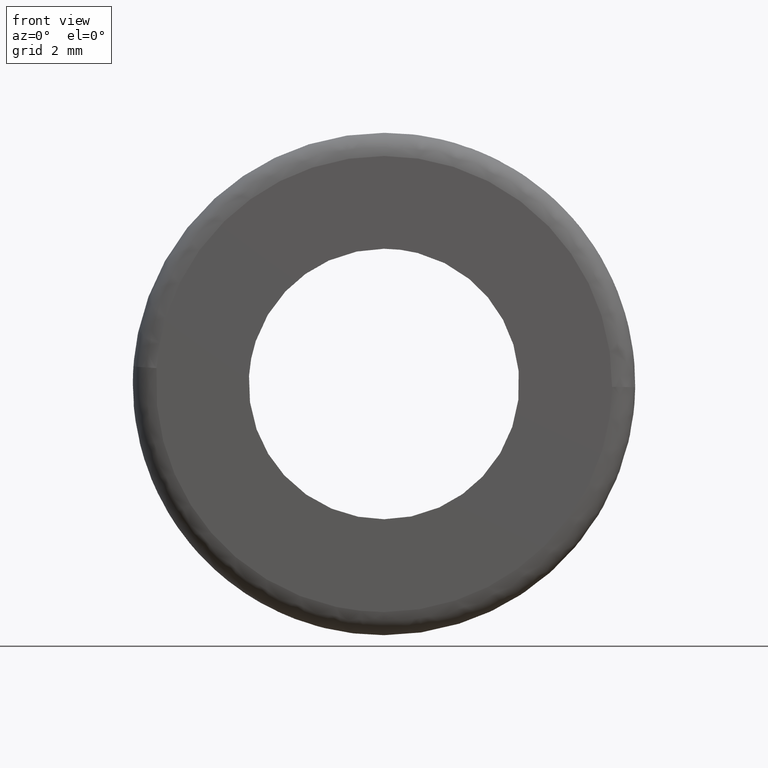
[diagram: clean part render]
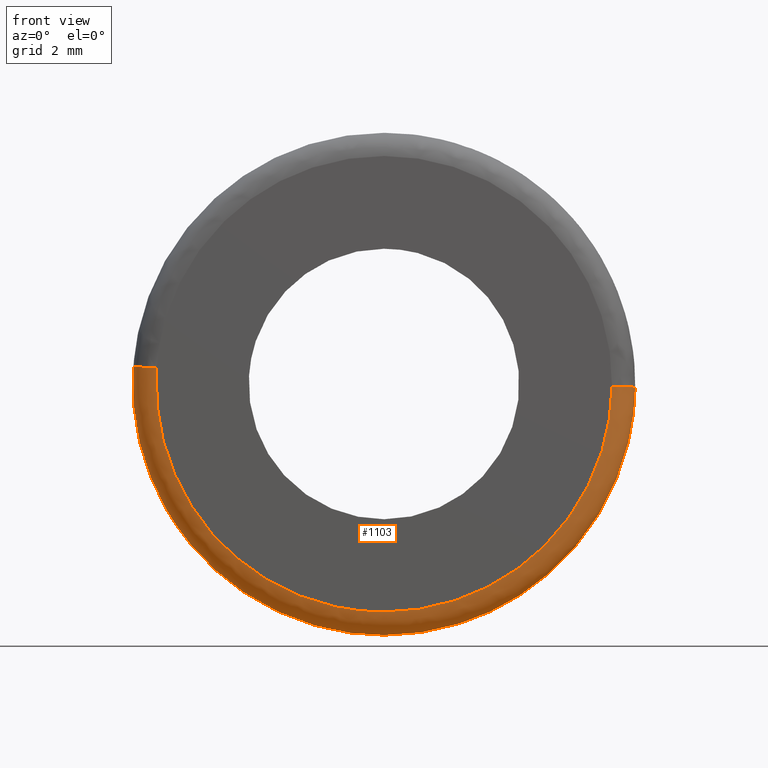
[diagram: same view with one face highlighted and labeled with its STEP entity id]
A machine part, front view. The second image highlights one B-rep face of the part: STEP entity #1103.
In plain terms, the highlighted face is a freeform B-spline surface patch.
Its self-contained STEP definition (entity closure, byte-faithful):
#70=CARTESIAN_POINT('',(3.527737390288090,0.599999999992864,-5.459401881631385));
#71=VERTEX_POINT('',#70);
#72=CARTESIAN_POINT('',(6.499486787324761,0.599999999956108,-0.081679259245201));
#73=VERTEX_POINT('',#72);
#74=CARTESIAN_POINT('',(3.527737390288090,0.599999999992864,-5.459401881631385));
#75=CARTESIAN_POINT('',(6.455681202378268,0.599999999979934,-3.567433454250579));
#76=CARTESIAN_POINT('',(6.499486787324761,0.599999999956108,-0.081679259245201));
#84=(BOUNDED_CURVE()B_SPLINE_CURVE(2,(#74,#75,#76),.UNSPECIFIED.,.F.,.U.)B_SPLINE_CURVE_WITH_KNOTS((3,3),(0.092934731225705,0.247784295921544),.UNSPECIFIED.)CURVE()GEOMETRIC_REPRESENTATION_ITEM()RATIONAL_B_SPLINE_CURVE((0.863190106682966,0.816652486740027,0.994854295643588))REPRESENTATION_ITEM(''));
#85=EDGE_CURVE('',#71,#73,#84,.T.);
#128=CARTESIAN_POINT('',(-5.015560096692222,0.599999999999975,-4.134508062208667));
#129=VERTEX_POINT('',#128);
#135=CARTESIAN_POINT('',(-6.484176879962625,0.599999999956112,0.453266135243000));
#136=VERTEX_POINT('',#135);
#137=CARTESIAN_POINT('',(-6.484176879962625,0.599999999956112,0.453266135243000));
#138=CARTESIAN_POINT('',(-6.500000000000000,0.599999999999979,0.226909253188261));
#139=CARTESIAN_POINT('',(-6.500000000000000,0.599999999999979,-1.928755E-016));
#140=CARTESIAN_POINT('',(-6.500000000000001,0.599999999999979,-2.333737922020143));
#141=CARTESIAN_POINT('',(-5.015560096692223,0.599999999999975,-4.134508062208667));
#149=(BOUNDED_CURVE()B_SPLINE_CURVE(2,(#137,#138,#139,#140,#141),.UNSPECIFIED.,.F.,.U.)B_SPLINE_CURVE_WITH_KNOTS((3,2,3),(0.737833686534995,0.750000000000000,0.860504603570303),.UNSPECIFIED.)CURVE()GEOMETRIC_REPRESENTATION_ITEM()RATIONAL_B_SPLINE_CURVE((0.972879876386772,0.985746277152565,1.0,0.870535803866357,0.855522725095084))REPRESENTATION_ITEM(''));
#150=EDGE_CURVE('',#136,#129,#149,.T.);
#199=CARTESIAN_POINT('',(0.0,0.599999999999979,-6.500000000000000));
#200=VERTEX_POINT('',#199);
#201=CARTESIAN_POINT('',(0.0,0.599999999999979,-6.500000000000000));
#202=CARTESIAN_POINT('',(1.917344332213022,0.599999999999979,-6.499999999999999));
#203=CARTESIAN_POINT('',(3.527737390288090,0.599999999992864,-5.459401881631385));
#211=(BOUNDED_CURVE()B_SPLINE_CURVE(2,(#201,#202,#203),.UNSPECIFIED.,.F.,.U.)B_SPLINE_CURVE_WITH_KNOTS((3,3),(0.0,0.092934731225705),.UNSPECIFIED.)CURVE()GEOMETRIC_REPRESENTATION_ITEM()RATIONAL_B_SPLINE_CURVE((1.0,0.891120189726961,0.863190106682967))REPRESENTATION_ITEM(''));
#212=EDGE_CURVE('',#200,#71,#211,.T.);
#214=CARTESIAN_POINT('',(-5.015560096692223,0.599999999999975,-4.134508062208667));
#215=CARTESIAN_POINT('',(-3.065599607541474,0.599999999999979,-6.500000000000000));
#216=CARTESIAN_POINT('',(0.0,0.599999999999979,-6.500000000000000));
#224=(BOUNDED_CURVE()B_SPLINE_CURVE(2,(#214,#215,#216),.UNSPECIFIED.,.F.,.U.)B_SPLINE_CURVE_WITH_KNOTS((3,3),(0.860504603570303,1.0),.UNSPECIFIED.)CURVE()GEOMETRIC_REPRESENTATION_ITEM()RATIONAL_B_SPLINE_CURVE((0.855522725095084,0.836570977320189,1.0))REPRESENTATION_ITEM(''));
#225=EDGE_CURVE('',#129,#200,#224,.T.);
#1008=CARTESIAN_POINT('',(-6.482728054263200,0.641722345617059,0.453164497843812));
#1009=CARTESIAN_POINT('',(-6.495697414983670,0.641722345617058,0.267631785134629));
#1010=CARTESIAN_POINT('',(-6.498034515707674,0.641722345617058,0.081661008497729));
#1011=CARTESIAN_POINT('',(-6.579695524205405,0.641722345617058,-6.416373507209946));
#1012=CARTESIAN_POINT('',(-0.081661008497729,0.641722345617058,-6.498034515707674));
#1013=CARTESIAN_POINT('',(6.416373507209946,0.641722345617058,-6.579695524205405));
#1014=CARTESIAN_POINT('',(6.498034515707674,0.641722345617058,-0.081661008497730));
#1015=CARTESIAN_POINT('',(-6.530586049763283,-0.046522541120432,0.456509932715840));
#1016=CARTESIAN_POINT('',(-6.543651155300103,-0.046522541120432,0.269607546058339));
#1017=CARTESIAN_POINT('',(-6.546005509401854,-0.046522541120432,0.082263861516474));
#1018=CARTESIAN_POINT('',(-6.628269370918328,-0.046522541120432,-6.463741647885377));
#1019=CARTESIAN_POINT('',(-0.082263861516474,-0.046522541120432,-6.546005509401854));
#1020=CARTESIAN_POINT('',(6.463741647885377,-0.046522541120432,-6.628269370918328));
#1021=CARTESIAN_POINT('',(6.546005509401854,-0.046522541120432,-0.082263861516475));
#1022=CARTESIAN_POINT('',(-5.844016583703973,0.001452395702393,0.408516417529428));
#1023=CARTESIAN_POINT('',(-5.855708136781018,0.001452395702393,0.241263335059152));
#1024=CARTESIAN_POINT('',(-5.857814974407793,0.001452395702393,0.073615348956198));
#1025=CARTESIAN_POINT('',(-5.931430323363992,0.001452395702393,-5.784199625451596));
#1026=CARTESIAN_POINT('',(-0.073615348956198,0.001452395702393,-5.857814974407793));
#1027=CARTESIAN_POINT('',(5.784199625451596,0.001452395702393,-5.931430323363992));
#1028=CARTESIAN_POINT('',(5.857814974407793,0.001452395702393,-0.073615348956198));
#1036=(BOUNDED_SURFACE()B_SPLINE_SURFACE(2,2,((#1008,#1015,#1022),(#1009,#1016,#1023),(#1010,#1017,#1024),(#1011,#1018,#1025),(#1012,#1019,#1026),(#1013,#1020,#1027),(#1014,#1021,#1028)),.UNSPECIFIED.,.F.,.F.,.U.)B_SPLINE_SURFACE_WITH_KNOTS((3,2,2,3),(3,3),(0.0,0.430685438438030,11.197831667739610,21.964977897041191),(0.0,1.093424704437545),.UNSPECIFIED.)GEOMETRIC_REPRESENTATION_ITEM()RATIONAL_B_SPLINE_SURFACE(((0.889999354222063,0.584039666282865,0.889999445682314),(0.899812925844456,0.590479575557176,0.899813018313193),(0.910479850636381,0.597479476361807,0.910479944201298),(0.643806476518700,0.422481789355221,0.643806542679088),(0.910479850636381,0.597479476361807,0.910479944201298),(0.643806476518700,0.422481789355221,0.643806542679088),(0.910479850636381,0.597479476361807,0.910479944201298)))REPRESENTATION_ITEM('')SURFACE());
#1037=ORIENTED_EDGE('',*,*,#150,.T.);
#1038=ORIENTED_EDGE('',*,*,#225,.T.);
#1039=ORIENTED_EDGE('',*,*,#212,.T.);
#1040=ORIENTED_EDGE('',*,*,#85,.T.);
#1041=CARTESIAN_POINT('',(5.899534161039190,-1.097369E-014,-0.074139635332143));
#1042=VERTEX_POINT('',#1041);
#1043=CARTESIAN_POINT('',(6.499486787324761,0.599999999956108,-0.081679259245201));
#1044=CARTESIAN_POINT('',(6.499486787237067,4.738053E-010,-0.081679259240690));
#1045=CARTESIAN_POINT('',(5.899534161039191,-1.097369E-014,-0.074139635332143));
#1053=(BOUNDED_CURVE()B_SPLINE_CURVE(2,(#1043,#1044,#1045),.UNSPECIFIED.,.F.,.U.)B_SPLINE_CURVE_WITH_KNOTS((3,3),(-1.725134643131850,-0.274865357528030),.UNSPECIFIED.)CURVE()GEOMETRIC_REPRESENTATION_ITEM()RATIONAL_B_SPLINE_CURVE((0.883342149599553,0.624617224298808,0.883342149364110))REPRESENTATION_ITEM(''));
#1054=EDGE_CURVE('',#73,#1042,#1053,.T.);
#1055=ORIENTED_EDGE('',*,*,#1054,.T.);
#1056=CARTESIAN_POINT('',(0.0,-1.083777E-015,-5.900000000000000));
#1057=VERTEX_POINT('',#1056);
#1058=CARTESIAN_POINT('',(0.0,-1.083777E-015,-5.900000000000000));
#1059=CARTESIAN_POINT('',(5.826320386418812,-1.083777E-015,-5.900000000000000));
#1060=CARTESIAN_POINT('',(5.899534161039190,-1.097369E-014,-0.074139635332143));
#1068=(BOUNDED_CURVE()B_SPLINE_CURVE(2,(#1058,#1059,#1060),.UNSPECIFIED.,.F.,.U.)B_SPLINE_CURVE_WITH_KNOTS((3,3),(0.0,0.247784295920692),.UNSPECIFIED.)CURVE()GEOMETRIC_REPRESENTATION_ITEM()RATIONAL_B_SPLINE_CURVE((1.0,0.709702639985454,0.994854295641627))REPRESENTATION_ITEM(''));
#1069=EDGE_CURVE('',#1057,#1042,#1068,.T.);
#1070=ORIENTED_EDGE('',*,*,#1069,.F.);
#1071=CARTESIAN_POINT('',(-5.885637475672291,-1.098874E-014,0.411426184296670));
#1072=VERTEX_POINT('',#1071);
#1073=CARTESIAN_POINT('',(-5.885637475672291,-1.098874E-014,0.411426184296670));
#1074=CARTESIAN_POINT('',(-5.900000000000000,-1.083777E-015,0.205963783661399));
#1075=CARTESIAN_POINT('',(-5.900000000000000,-1.083777E-015,-1.928755E-016));
#1076=CARTESIAN_POINT('',(-5.900000000000000,-1.083777E-015,-5.900000000000000));
#1077=CARTESIAN_POINT('',(0.0,-1.083777E-015,-5.900000000000000));
#1085=(BOUNDED_CURVE()B_SPLINE_CURVE(2,(#1073,#1074,#1075,#1076,#1077),.UNSPECIFIED.,.F.,.U.)B_SPLINE_CURVE_WITH_KNOTS((3,2,3),(0.737833686535100,0.750000000000000,1.0),.UNSPECIFIED.)CURVE()GEOMETRIC_REPRESENTATION_ITEM()RATIONAL_B_SPLINE_CURVE((0.972879876386993,0.985746277152687,1.0,0.707106781186548,1.0))REPRESENTATION_ITEM(''));
#1086=EDGE_CURVE('',#1072,#1057,#1085,.T.);
#1087=ORIENTED_EDGE('',*,*,#1086,.F.);
#1088=CARTESIAN_POINT('',(-6.484176879962625,0.599999999956112,0.453266135243000));
#1089=CARTESIAN_POINT('',(-6.484176879875289,2.761087E-011,0.453266135234257));
#1090=CARTESIAN_POINT('',(-5.885637475672291,-1.098874E-014,0.411426184296670));
#1098=(BOUNDED_CURVE()B_SPLINE_CURVE(2,(#1088,#1089,#1090),.UNSPECIFIED.,.F.,.U.)B_SPLINE_CURVE_WITH_KNOTS((3,3),(-1.725134643131863,-0.274865356765413),.UNSPECIFIED.)CURVE()GEOMETRIC_REPRESENTATION_ITEM()RATIONAL_B_SPLINE_CURVE((0.863472075320404,0.610566959895645,0.863472075356231))REPRESENTATION_ITEM(''));
#1099=EDGE_CURVE('',#136,#1072,#1098,.T.);
#1100=ORIENTED_EDGE('',*,*,#1099,.F.);
#1101=EDGE_LOOP('',(#1037,#1038,#1039,#1040,#1055,#1070,#1087,#1100));
#1102=FACE_OUTER_BOUND('',#1101,.T.);
#1103=ADVANCED_FACE('',(#1102),#1036,.T.);